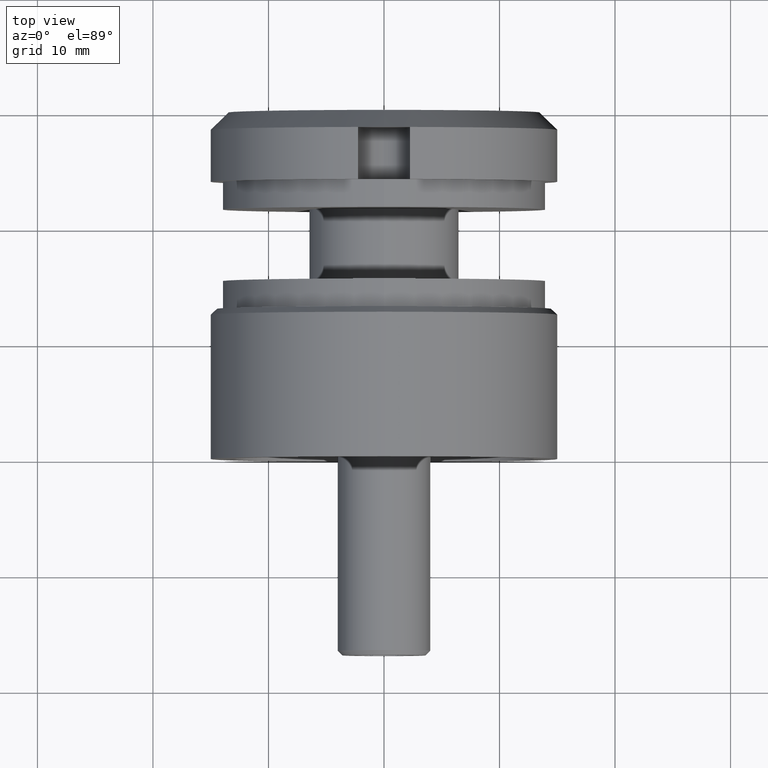
[diagram: clean part render]
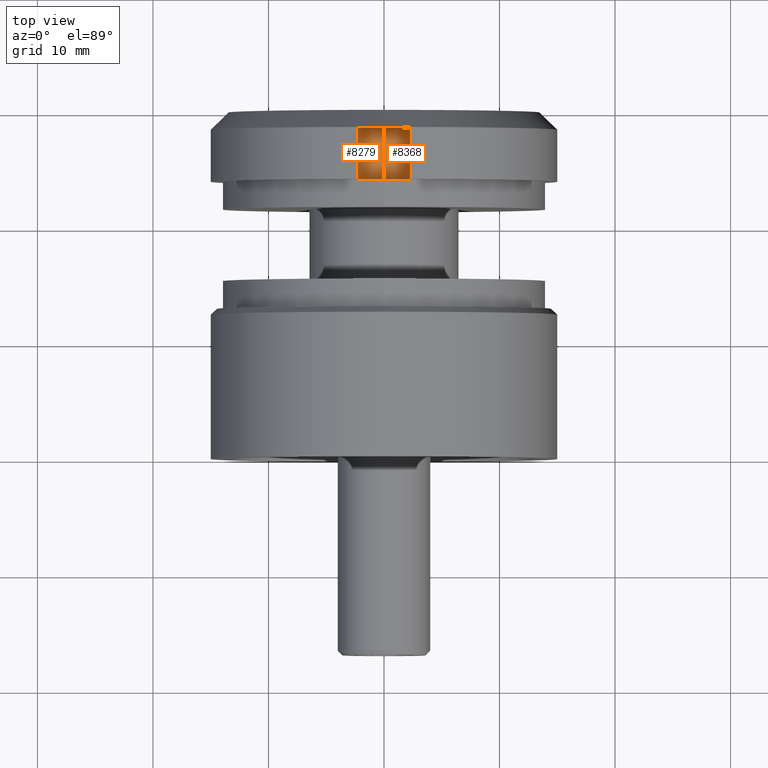
[diagram: same view with one multi-face feature highlighted, each face labeled with its STEP entity id]
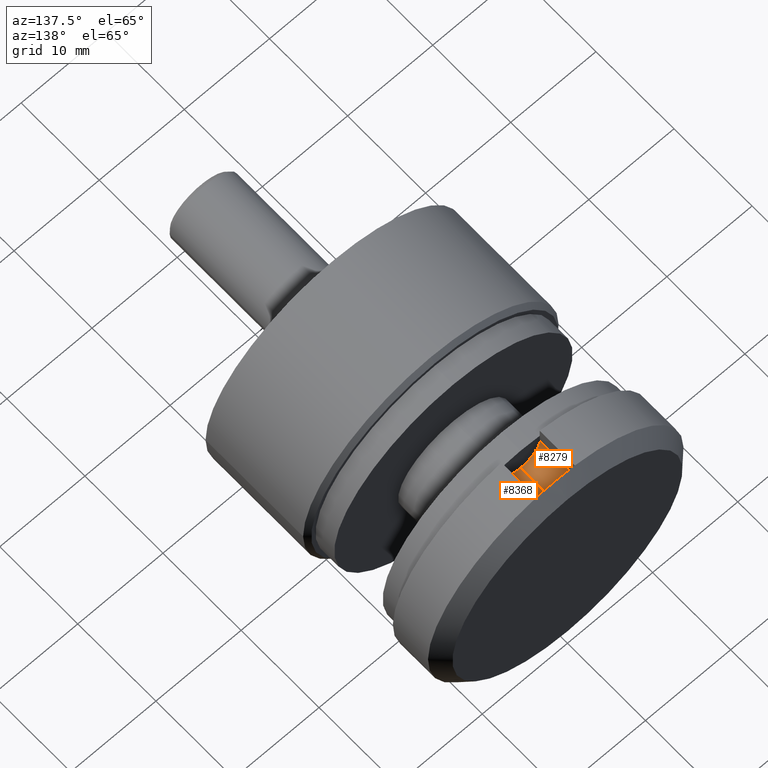
[diagram: same view with one multi-face feature highlighted, each face labeled with its STEP entity id]
A machine part, top view. The highlighted faces form ONE feature: a constant-radius fillet chain: 2 tangent blend faces with common blend radius 2.25 mm. The faces share edges in the B-rep.
A second angle (auxiliary view) of the same feature is appended — it is thin or edge-on in the first view.
Their STEP definitions:
[1] entity #8279 (Cylinder):
#547 = EDGE_CURVE ( 'NONE', #5545, #13821, #4302, .T. ) ;
#561 = DIRECTION ( 'NONE',  ( 0.000000000000000000, 0.000000000000000000, -1.000000000000000000 ) ) ;
#738 = DIRECTION ( 'NONE',  ( 0.000000000000000000, 0.000000000000000000, 1.000000000000000000 ) ) ;
#1166 = CARTESIAN_POINT ( 'NONE',  ( -4.336808689942017736E-16, 9.500000000000001776, 10.49999999999999822 ) ) ;
#2184 = DIRECTION ( 'NONE',  ( 0.000000000000000000, -1.000000000000000000, 0.000000000000000000 ) ) ;
#2251 = ORIENTED_EDGE ( 'NONE', *, *, #12310, .F. ) ;
#2776 = CARTESIAN_POINT ( 'NONE',  ( -2.250000000000000444, 5.000000000000000888, 12.75000000000000000 ) ) ;
#2862 = EDGE_CURVE ( 'NONE', #13821, #13612, #7599, .T. ) ;
#3039 = CARTESIAN_POINT ( 'NONE',  ( -4.336808689942017736E-16, 9.500000000000001776, 12.75000000000000000 ) ) ;
#3521 = CYLINDRICAL_SURFACE ( 'NONE', #12457, 2.250000000000000444 ) ;
#3776 = VECTOR ( 'NONE', #8317, 1000.000000000000000 ) ;
#3877 = FACE_OUTER_BOUND ( 'NONE', #13140, .T. ) ;
#4302 = LINE ( 'NONE', #10624, #8707 ) ;
#4392 = CARTESIAN_POINT ( 'NONE',  ( -4.336808689942017736E-16, 9.500000000000001776, 12.75000000000000000 ) ) ;
#4450 = CARTESIAN_POINT ( 'NONE',  ( 0.000000000000000000, 5.000000000000000888, 10.49999999999999822 ) ) ;
#4516 = LINE ( 'NONE', #10566, #3776 ) ;
#4836 = ORIENTED_EDGE ( 'NONE', *, *, #2862, .F. ) ;
#5545 = VERTEX_POINT ( 'NONE', #1166 ) ;
#6322 = CARTESIAN_POINT ( 'NONE',  ( -2.250000000000000444, 9.500000000000001776, 12.75000000000000000 ) ) ;
#6466 = ORIENTED_EDGE ( 'NONE', *, *, #547, .F. ) ;
#6722 = AXIS2_PLACEMENT_3D ( 'NONE', #4392, #2184, #7792 ) ;
#7313 = CARTESIAN_POINT ( 'NONE',  ( -4.336808689942017736E-16, 5.000000000000000888, 12.75000000000000000 ) ) ;
#7599 = CIRCLE ( 'NONE', #12707, 2.250000000000000444 ) ;
#7633 = ORIENTED_EDGE ( 'NONE', *, *, #7809, .F. ) ;
#7636 = DIRECTION ( 'NONE',  ( 0.000000000000000000, 1.000000000000000000, 0.000000000000000000 ) ) ;
#7792 = DIRECTION ( 'NONE',  ( 0.000000000000000000, 0.000000000000000000, 1.000000000000000000 ) ) ;
#7809 = EDGE_CURVE ( 'NONE', #7884, #5545, #9161, .T. ) ;
#7884 = VERTEX_POINT ( 'NONE', #6322 ) ;
#8279 = ADVANCED_FACE ( 'NONE', ( #3877 ), #3521, .F. ) ;
#8317 = DIRECTION ( 'NONE',  ( -0.000000000000000000, 1.000000000000000000, -0.000000000000000000 ) ) ;
#8542 = DIRECTION ( 'NONE',  ( 0.000000000000000000, 1.000000000000000000, 0.000000000000000000 ) ) ;
#8707 = VECTOR ( 'NONE', #13948, 1000.000000000000000 ) ;
#9161 = CIRCLE ( 'NONE', #6722, 2.250000000000000444 ) ;
#10566 = CARTESIAN_POINT ( 'NONE',  ( -2.250000000000000444, 9.500000000000001776, 12.75000000000000000 ) ) ;
#10624 = CARTESIAN_POINT ( 'NONE',  ( -4.336808689942017736E-16, 5.000000000000000888, 10.49999999999999822 ) ) ;
#12310 = EDGE_CURVE ( 'NONE', #13612, #7884, #4516, .T. ) ;
#12457 = AXIS2_PLACEMENT_3D ( 'NONE', #3039, #7636, #738 ) ;
#12707 = AXIS2_PLACEMENT_3D ( 'NONE', #7313, #8542, #561 ) ;
#13140 = EDGE_LOOP ( 'NONE', ( #6466, #7633, #2251, #4836 ) ) ;
#13612 = VERTEX_POINT ( 'NONE', #2776 ) ;
#13821 = VERTEX_POINT ( 'NONE', #4450 ) ;
#13948 = DIRECTION ( 'NONE',  ( 0.000000000000000000, -1.000000000000000000, 0.000000000000000000 ) ) ;
[2] entity #8368 (Cylinder):
#547 = EDGE_CURVE ( 'NONE', #5545, #13821, #4302, .T. ) ;
#1166 = CARTESIAN_POINT ( 'NONE',  ( -4.336808689942017736E-16, 9.500000000000001776, 10.49999999999999822 ) ) ;
#1254 = VERTEX_POINT ( 'NONE', #5284 ) ;
#2120 = ORIENTED_EDGE ( 'NONE', *, *, #8057, .F. ) ;
#2340 = EDGE_CURVE ( 'NONE', #5545, #1254, #13901, .T. ) ;
#3002 = CARTESIAN_POINT ( 'NONE',  ( 2.250000000000000000, 5.000000000000000888, 12.75000000000000000 ) ) ;
#3808 = DIRECTION ( 'NONE',  ( 0.000000000000000000, -1.000000000000000000, 0.000000000000000000 ) ) ;
#4302 = LINE ( 'NONE', #10624, #8707 ) ;
#4308 = VECTOR ( 'NONE', #11928, 1000.000000000000000 ) ;
#4450 = CARTESIAN_POINT ( 'NONE',  ( 0.000000000000000000, 5.000000000000000888, 10.49999999999999822 ) ) ;
#4780 = CIRCLE ( 'NONE', #10202, 2.250000000000000444 ) ;
#5284 = CARTESIAN_POINT ( 'NONE',  ( 2.250000000000000000, 9.500000000000001776, 12.75000000000000000 ) ) ;
#5545 = VERTEX_POINT ( 'NONE', #1166 ) ;
#5897 = DIRECTION ( 'NONE',  ( 0.000000000000000000, 0.000000000000000000, 1.000000000000000000 ) ) ;
#5906 = DIRECTION ( 'NONE',  ( 0.000000000000000000, 1.000000000000000000, 0.000000000000000000 ) ) ;
#5988 = ORIENTED_EDGE ( 'NONE', *, *, #2340, .F. ) ;
#6320 = AXIS2_PLACEMENT_3D ( 'NONE', #10554, #3808, #5897 ) ;
#6547 = CARTESIAN_POINT ( 'NONE',  ( 0.000000000000000000, 9.500000000000001776, 12.75000000000000000 ) ) ;
#6962 = ORIENTED_EDGE ( 'NONE', *, *, #547, .T. ) ;
#7397 = EDGE_LOOP ( 'NONE', ( #5988, #6962, #2120, #8076 ) ) ;
#7598 = AXIS2_PLACEMENT_3D ( 'NONE', #6547, #12320, #14440 ) ;
#7618 = FACE_OUTER_BOUND ( 'NONE', #7397, .T. ) ;
#8057 = EDGE_CURVE ( 'NONE', #11191, #13821, #4780, .T. ) ;
#8076 = ORIENTED_EDGE ( 'NONE', *, *, #14093, .F. ) ;
#8151 = CYLINDRICAL_SURFACE ( 'NONE', #7598, 2.250000000000000444 ) ;
#8368 = ADVANCED_FACE ( 'NONE', ( #7618 ), #8151, .F. ) ;
#8707 = VECTOR ( 'NONE', #13948, 1000.000000000000000 ) ;
#10202 = AXIS2_PLACEMENT_3D ( 'NONE', #10318, #5906, #10407 ) ;
#10318 = CARTESIAN_POINT ( 'NONE',  ( 0.000000000000000000, 5.000000000000000888, 12.75000000000000000 ) ) ;
#10407 = DIRECTION ( 'NONE',  ( 0.000000000000000000, 0.000000000000000000, -1.000000000000000000 ) ) ;
#10554 = CARTESIAN_POINT ( 'NONE',  ( 0.000000000000000000, 9.500000000000001776, 12.75000000000000000 ) ) ;
#10624 = CARTESIAN_POINT ( 'NONE',  ( -4.336808689942017736E-16, 5.000000000000000888, 10.49999999999999822 ) ) ;
#11191 = VERTEX_POINT ( 'NONE', #3002 ) ;
#11928 = DIRECTION ( 'NONE',  ( 0.000000000000000000, -1.000000000000000000, 0.000000000000000000 ) ) ;
#12320 = DIRECTION ( 'NONE',  ( 0.000000000000000000, 1.000000000000000000, 0.000000000000000000 ) ) ;
#12933 = CARTESIAN_POINT ( 'NONE',  ( 2.250000000000000000, 5.000000000000000888, 12.75000000000000000 ) ) ;
#13764 = LINE ( 'NONE', #12933, #4308 ) ;
#13821 = VERTEX_POINT ( 'NONE', #4450 ) ;
#13901 = CIRCLE ( 'NONE', #6320, 2.250000000000000444 ) ;
#13948 = DIRECTION ( 'NONE',  ( 0.000000000000000000, -1.000000000000000000, 0.000000000000000000 ) ) ;
#14093 = EDGE_CURVE ( 'NONE', #1254, #11191, #13764, .T. ) ;
#14440 = DIRECTION ( 'NONE',  ( 0.000000000000000000, 0.000000000000000000, 1.000000000000000000 ) ) ;